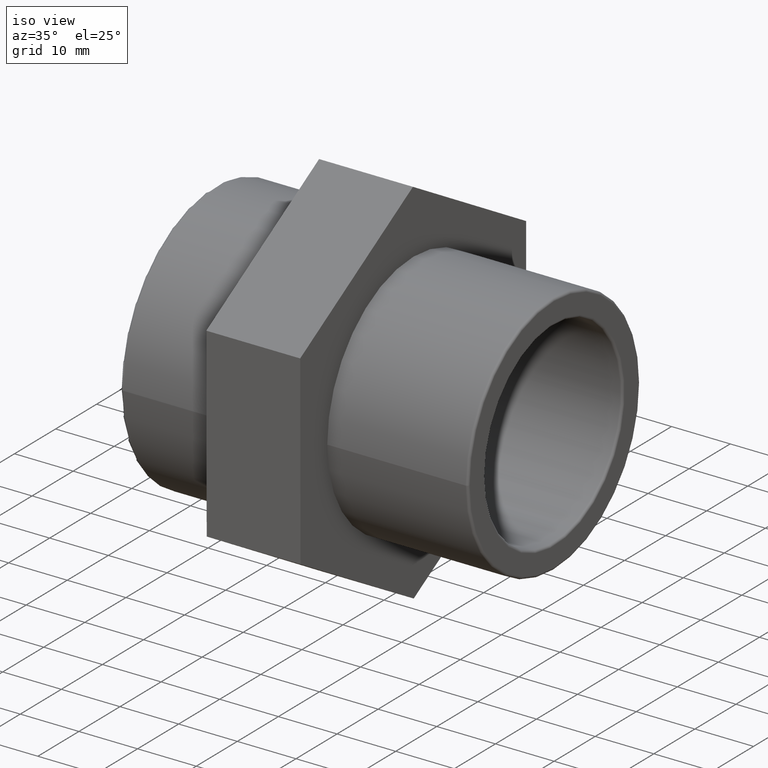
[diagram: clean part render]
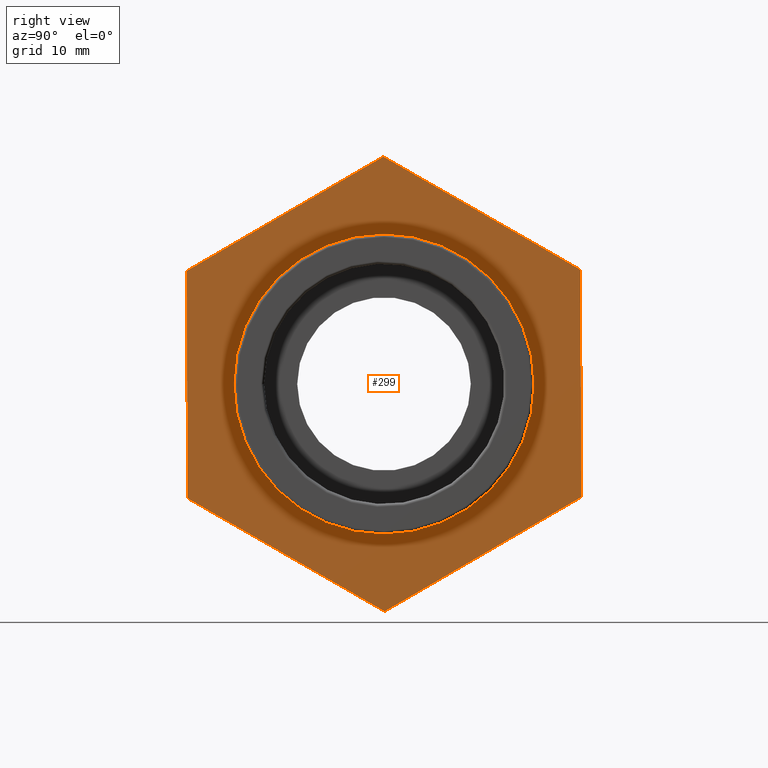
[diagram: tour spotlight — one face highlighted and labeled with its STEP entity id]
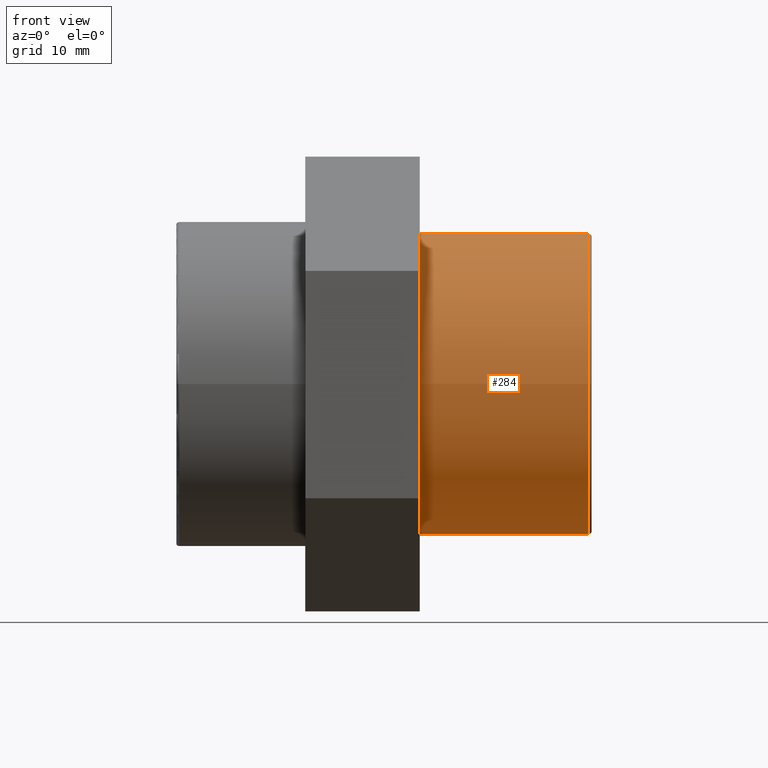
[diagram: tour spotlight — one face highlighted and labeled with its STEP entity id]
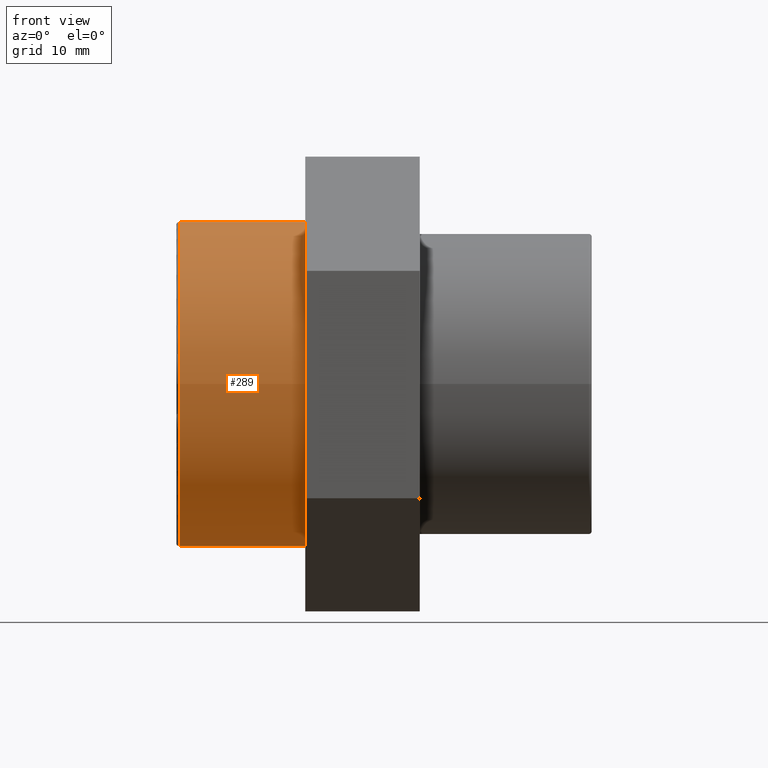
[diagram: tour spotlight — one face highlighted and labeled with its STEP entity id]
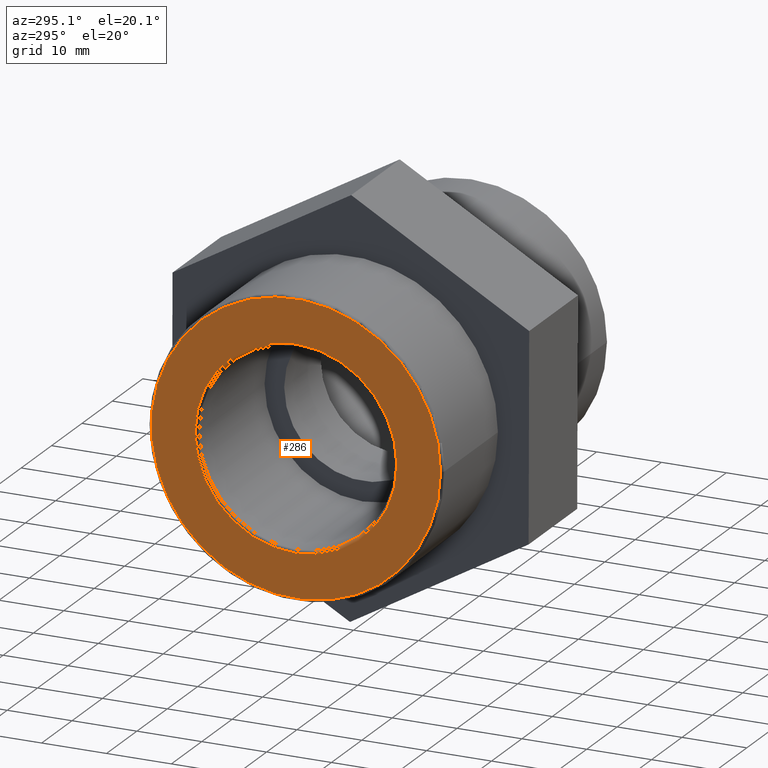
[diagram: tour spotlight — one face highlighted and labeled with its STEP entity id]
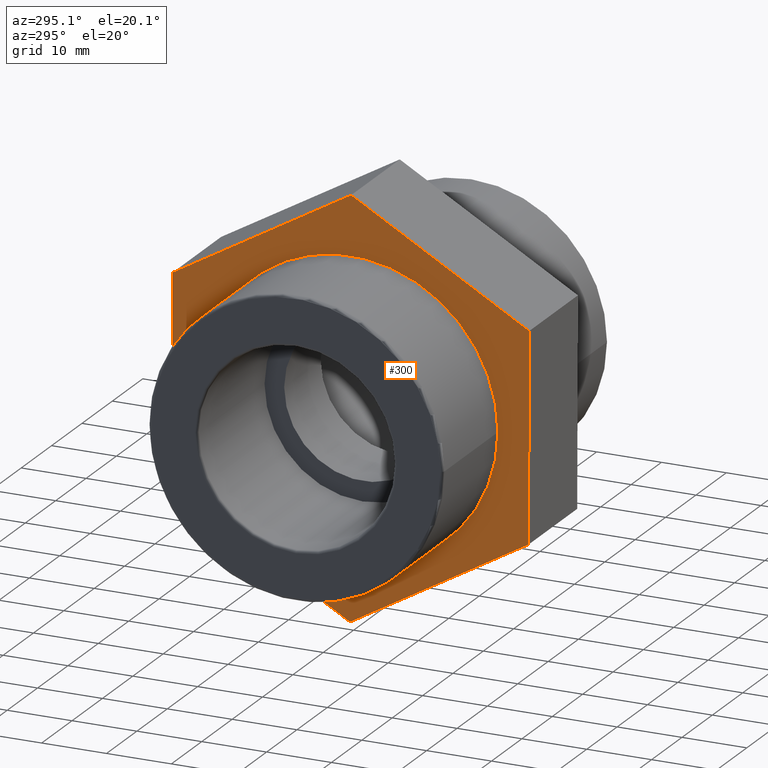
[diagram: tour spotlight — one face highlighted and labeled with its STEP entity id]
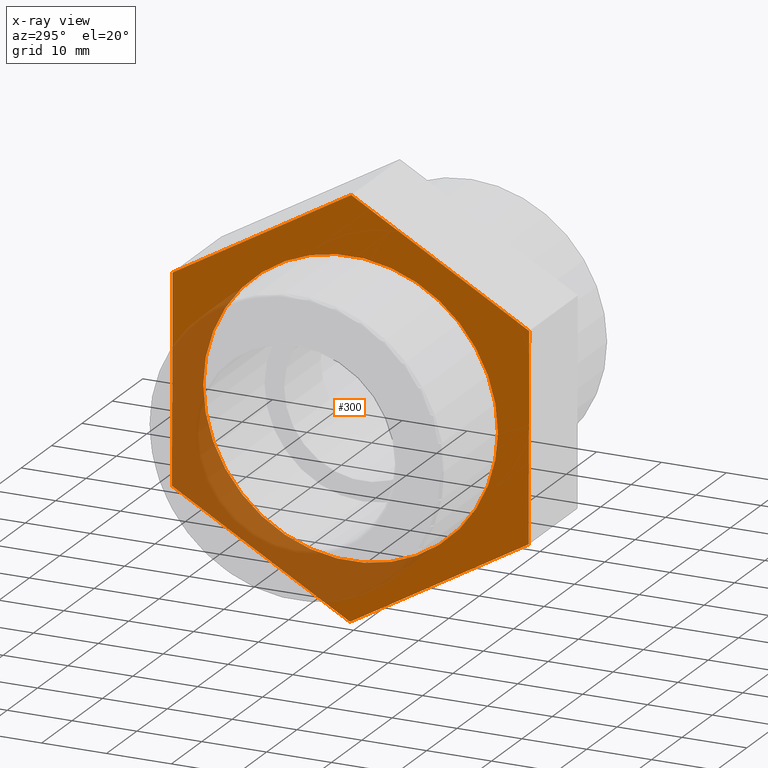
[diagram: x-ray of the same camera — body ghosted, this tour face saturated]
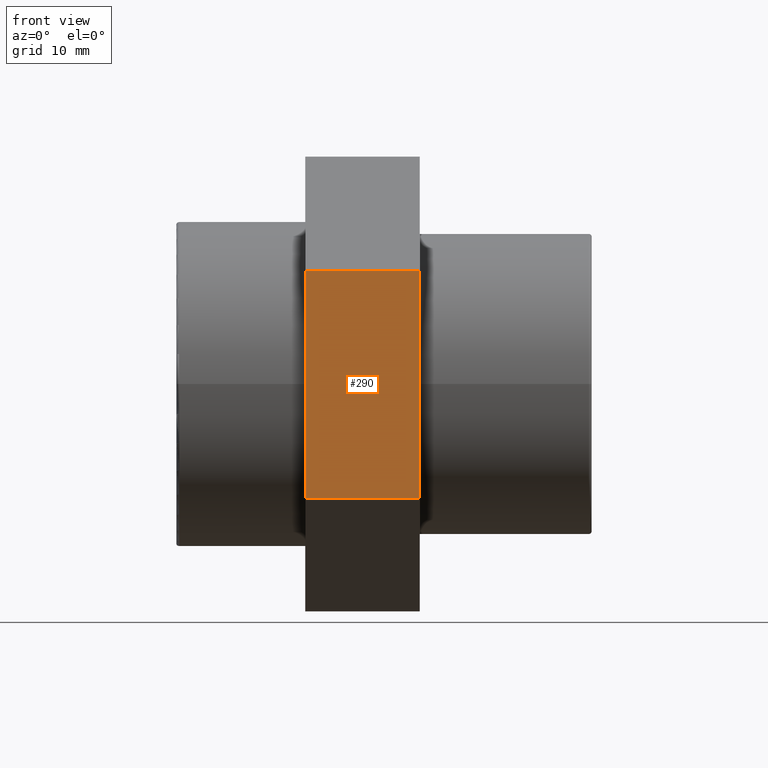
[diagram: tour spotlight — one face highlighted and labeled with its STEP entity id]
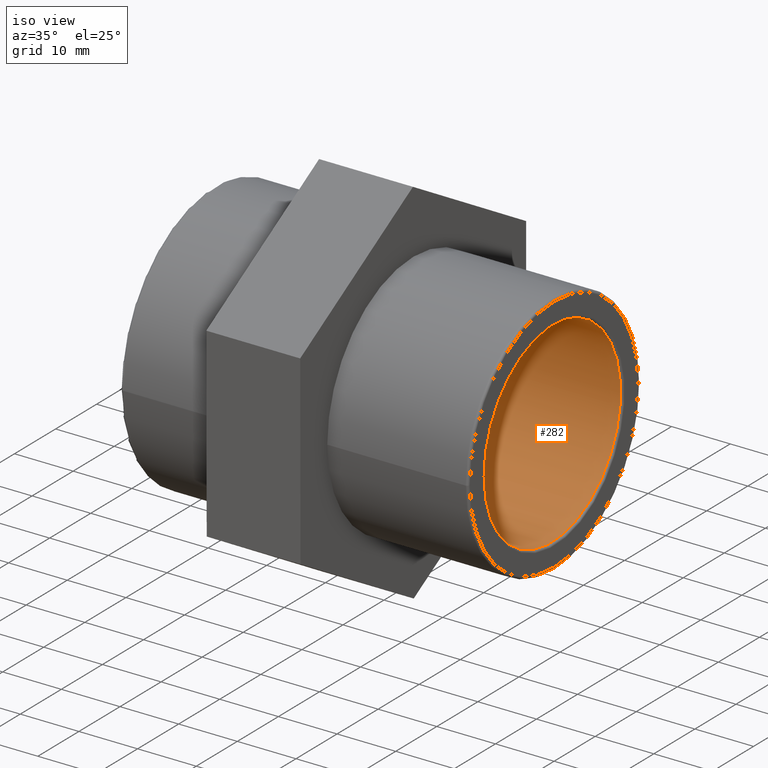
[diagram: tour spotlight — one face highlighted and labeled with its STEP entity id]
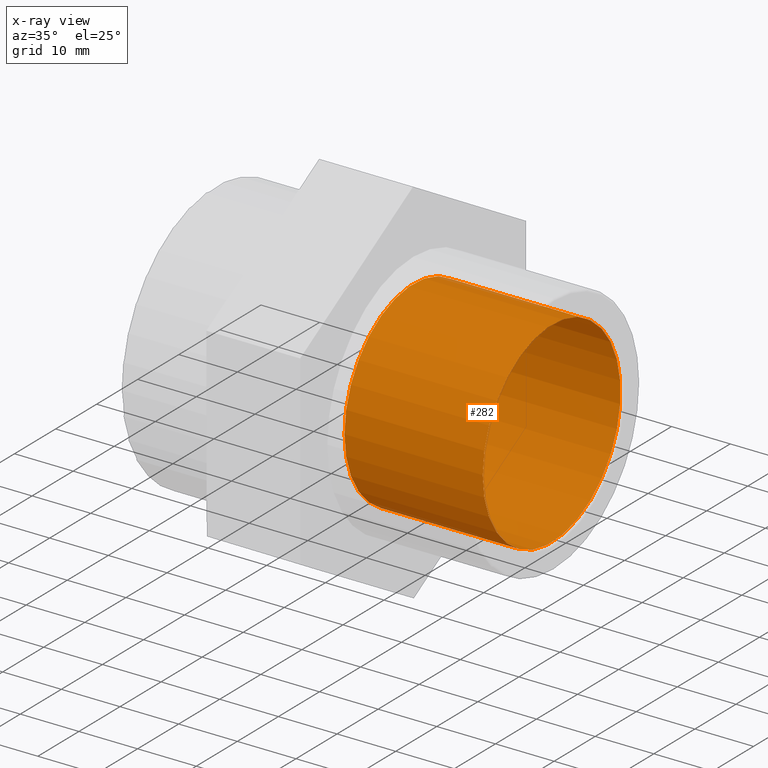
[diagram: x-ray of the same camera — body ghosted, this tour face saturated]
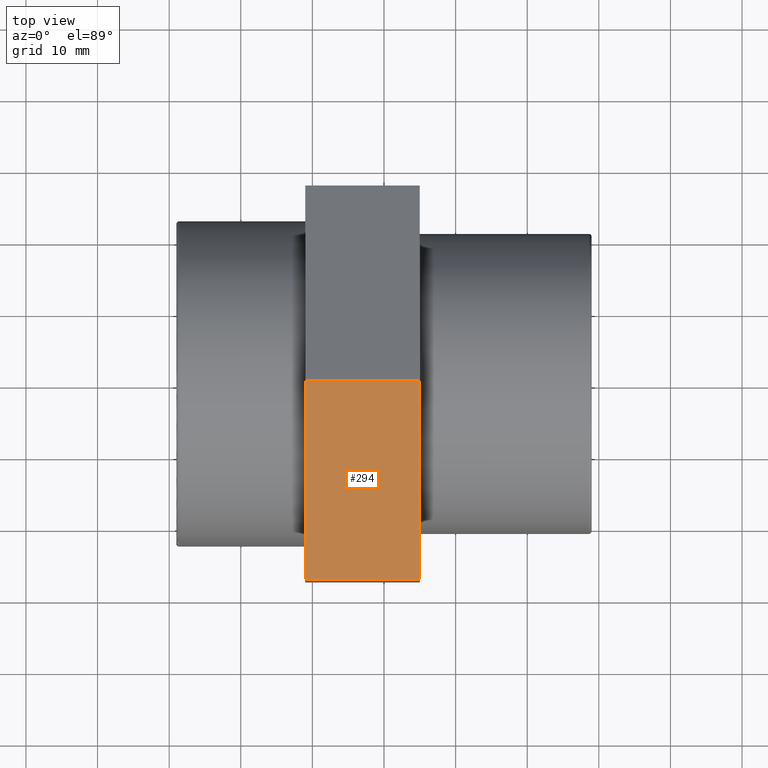
[diagram: tour spotlight — one face highlighted and labeled with its STEP entity id]
A machine part: a face-by-face anatomy tour. The part has 21 B-rep faces; the first image is the clean iso view, then the 8 largest visible faces are spotlighted one at a time (largest first), each with its STEP entity span.

Face 1 — right view, entity #299. In plain terms, the highlighted planar face has unit normal (1, 0, 0).
Definition (entity closure, byte-faithful):
#17=LINE('',#470,#35);
#21=LINE('',#477,#39);
#24=LINE('',#483,#42);
#27=LINE('',#491,#45);
#30=LINE('',#495,#48);
#32=LINE('',#498,#50);
#35=VECTOR('',#388,31.7542648054294);
#39=VECTOR('',#394,31.7542648054294);
#42=VECTOR('',#399,31.7542648054294);
#45=VECTOR('',#404,31.7542648054294);
#48=VECTOR('',#409,31.7542648054294);
#50=VECTOR('',#413,31.7542648054294);
#66=PLANE('',#336);
#81=FACE_BOUND('',#137,.T.);
#102=FACE_OUTER_BOUND('',#136,.T.);
#136=EDGE_LOOP('',(#262,#263,#264,#265,#266,#267));
#137=EDGE_LOOP('',(#268));
#145=CIRCLE('',#313,20.955);
#159=VERTEX_POINT('',#444);
#168=VERTEX_POINT('',#467);
#169=VERTEX_POINT('',#469);
#171=VERTEX_POINT('',#475);
#173=VERTEX_POINT('',#481);
#176=VERTEX_POINT('',#488);
#177=VERTEX_POINT('',#490);
#185=EDGE_CURVE('',#159,#159,#145,.T.);
#194=EDGE_CURVE('',#168,#169,#17,.T.);
#198=EDGE_CURVE('',#171,#168,#21,.T.);
#201=EDGE_CURVE('',#173,#171,#24,.T.);
#204=EDGE_CURVE('',#176,#177,#27,.T.);
#207=EDGE_CURVE('',#169,#176,#30,.T.);
#209=EDGE_CURVE('',#177,#173,#32,.T.);
#262=ORIENTED_EDGE('',*,*,#207,.F.);
#263=ORIENTED_EDGE('',*,*,#194,.F.);
#264=ORIENTED_EDGE('',*,*,#198,.F.);
#265=ORIENTED_EDGE('',*,*,#201,.F.);
#266=ORIENTED_EDGE('',*,*,#209,.F.);
#267=ORIENTED_EDGE('',*,*,#204,.F.);
#268=ORIENTED_EDGE('',*,*,#185,.T.);
#299=ADVANCED_FACE('',(#102,#81),#66,.T.);
#313=AXIS2_PLACEMENT_3D('',#445,#360,#361);
#336=AXIS2_PLACEMENT_3D('',#506,#424,#425);
#360=DIRECTION('center_axis',(-1.,-1.83697019872103E-16,0.));
#361=DIRECTION('ref_axis',(0.,0.,1.));
#388=DIRECTION('',(5.44336326563915E-19,-0.00296322894591814,0.999995609627469));
#394=DIRECTION('',(1.59357755523959E-16,-0.867503216083254,0.49743157326934));
#399=DIRECTION('',(1.58813419197395E-16,-0.864539987137336,-0.50256403635813));
#404=DIRECTION('',(-1.59357755523959E-16,0.867503216083254,-0.49743157326934));
#409=DIRECTION('',(-1.58813419197395E-16,0.864539987137336,0.50256403635813));
#413=DIRECTION('',(-5.44336326564018E-19,0.0029632289459187,-0.999995609627469));
#424=DIRECTION('center_axis',(1.,1.83697019872103E-16,0.));
#425=DIRECTION('ref_axis',(0.,0.,-1.));
#444=CARTESIAN_POINT('',(5.00000000000001,-20.955,0.));
#445=CARTESIAN_POINT('Origin',(5.,6.2456986756515E-15,0.));
#467=CARTESIAN_POINT('',(5.00000000000001,-27.4528316864415,-15.9585514922015));
#469=CARTESIAN_POINT('',(5.00000000000001,-27.5469268430693,15.795573900176));
#470=CARTESIAN_POINT('',(5.00000000000001,-27.4528316864415,-15.9585514922015));
#475=CARTESIAN_POINT('',(5.,0.0940951566278074,-31.7541253923775));
#477=CARTESIAN_POINT('',(5.,0.0940951566278074,-31.7541253923775));
#481=CARTESIAN_POINT('',(5.,27.5469268430693,-15.795573900176));
#483=CARTESIAN_POINT('',(5.,27.5469268430693,-15.795573900176));
#488=CARTESIAN_POINT('',(5.,-0.0940951566278125,31.7541253923775));
#490=CARTESIAN_POINT('',(5.,27.4528316864415,15.9585514922015));
#491=CARTESIAN_POINT('',(5.,-0.0940951566278125,31.7541253923775));
#495=CARTESIAN_POINT('',(5.00000000000001,-27.5469268430693,15.795573900176));
#498=CARTESIAN_POINT('',(5.,27.4528316864415,15.9585514922015));
#506=CARTESIAN_POINT('Origin',(5.00000000000001,-27.5,0.));

Face 2 — front view, entity #284. In plain terms, the highlighted cylindrical surface (bore or boss wall) has radius 20.955 mm, axis along (-1, -0, 0).
Definition (entity closure, byte-faithful):
#52=CYLINDRICAL_SURFACE('',#312,20.955);
#72=FACE_BOUND('',#113,.T.);
#87=FACE_OUTER_BOUND('',#112,.T.);
#112=EDGE_LOOP('',(#220));
#113=EDGE_LOOP('',(#221));
#144=CIRCLE('',#311,20.955);
#145=CIRCLE('',#313,20.955);
#158=VERTEX_POINT('',#441);
#159=VERTEX_POINT('',#444);
#184=EDGE_CURVE('',#158,#158,#144,.T.);
#185=EDGE_CURVE('',#159,#159,#145,.T.);
#220=ORIENTED_EDGE('',*,*,#185,.F.);
#221=ORIENTED_EDGE('',*,*,#184,.F.);
#284=ADVANCED_FACE('',(#87,#72),#52,.T.);
#311=AXIS2_PLACEMENT_3D('',#442,#356,#357);
#312=AXIS2_PLACEMENT_3D('',#443,#358,#359);
#313=AXIS2_PLACEMENT_3D('',#445,#360,#361);
#356=DIRECTION('center_axis',(1.,1.83697019872103E-16,0.));
#357=DIRECTION('ref_axis',(-1.82123199577618E-16,1.,6.12323399573677E-17));
#358=DIRECTION('center_axis',(-1.,-1.83697019872103E-16,0.));
#359=DIRECTION('ref_axis',(2.19911463726881E-16,-1.,0.));
#360=DIRECTION('center_axis',(-1.,-1.83697019872103E-16,0.));
#361=DIRECTION('ref_axis',(0.,0.,1.));
#441=CARTESIAN_POINT('',(28.5809,-20.955,-3.84937105141992E-15));
#442=CARTESIAN_POINT('Origin',(28.5809,1.05774397315536E-14,0.));
#443=CARTESIAN_POINT('Origin',(17.,8.45006291411674E-15,0.));
#444=CARTESIAN_POINT('',(5.00000000000001,-20.955,0.));
#445=CARTESIAN_POINT('Origin',(5.,6.2456986756515E-15,0.));

Face 3 — front view, entity #289. In plain terms, the highlighted cylindrical surface (bore or boss wall) has radius 22.7183 mm, axis along (-1, -0, 0).
Definition (entity closure, byte-faithful):
#54=CYLINDRICAL_SURFACE('',#323,22.71825);
#77=FACE_BOUND('',#123,.T.);
#92=FACE_OUTER_BOUND('',#122,.T.);
#122=EDGE_LOOP('',(#230));
#123=EDGE_LOOP('',(#231));
#150=CIRCLE('',#322,22.71825);
#151=CIRCLE('',#324,22.71825);
#164=VERTEX_POINT('',#458);
#165=VERTEX_POINT('',#461);
#190=EDGE_CURVE('',#164,#164,#150,.T.);
#191=EDGE_CURVE('',#165,#165,#151,.T.);
#230=ORIENTED_EDGE('',*,*,#191,.T.);
#231=ORIENTED_EDGE('',*,*,#190,.F.);
#289=ADVANCED_FACE('',(#92,#77),#54,.T.);
#322=AXIS2_PLACEMENT_3D('',#459,#378,#379);
#323=AXIS2_PLACEMENT_3D('',#460,#380,#381);
#324=AXIS2_PLACEMENT_3D('',#462,#382,#383);
#378=DIRECTION('center_axis',(-1.,-1.83697019872103E-16,0.));
#379=DIRECTION('ref_axis',(-1.83259553105734E-16,1.,6.12323399573677E-17));
#380=DIRECTION('center_axis',(-1.,-1.83697019872103E-16,0.));
#381=DIRECTION('ref_axis',(2.19911463726881E-16,-1.,0.));
#382=DIRECTION('center_axis',(-1.,-1.83697019872103E-16,0.));
#383=DIRECTION('ref_axis',(0.,0.,1.));
#458=CARTESIAN_POINT('',(-28.5809,-22.71825,1.39109160723647E-15));
#459=CARTESIAN_POINT('Origin',(-28.5809,7.69874210283978E-17,0.));
#460=CARTESIAN_POINT('Origin',(-20.,1.65327317884893E-15,0.));
#461=CARTESIAN_POINT('',(-11.,-22.71825,0.));
#462=CARTESIAN_POINT('Origin',(-11.,3.30654635769786E-15,0.));

Face 4 — auxiliary view, entity #286. In plain terms, the highlighted planar face has unit normal (-1, -0, 0).
Definition (entity closure, byte-faithful):
#57=PLANE('',#317);
#74=FACE_BOUND('',#117,.T.);
#89=FACE_OUTER_BOUND('',#116,.T.);
#116=EDGE_LOOP('',(#224));
#117=EDGE_LOOP('',(#225));
#146=CIRCLE('',#315,15.5646);
#148=CIRCLE('',#318,22.29915);
#160=VERTEX_POINT('',#447);
#162=VERTEX_POINT('',#452);
#186=EDGE_CURVE('',#160,#160,#146,.T.);
#188=EDGE_CURVE('',#162,#162,#148,.T.);
#224=ORIENTED_EDGE('',*,*,#188,.F.);
#225=ORIENTED_EDGE('',*,*,#186,.F.);
#286=ADVANCED_FACE('',(#89,#74),#57,.T.);
#315=AXIS2_PLACEMENT_3D('',#448,#364,#365);
#317=AXIS2_PLACEMENT_3D('',#451,#368,#369);
#318=AXIS2_PLACEMENT_3D('',#453,#370,#371);
#364=DIRECTION('center_axis',(-1.,-1.83697019872103E-16,0.));
#365=DIRECTION('ref_axis',(-1.83697019872103E-16,1.,6.12323399573677E-17));
#368=DIRECTION('center_axis',(-1.,-1.83697019872103E-16,0.));
#369=DIRECTION('ref_axis',(0.,0.,1.));
#370=DIRECTION('center_axis',(1.,1.83697019872103E-16,0.));
#371=DIRECTION('ref_axis',(-1.83697019872103E-16,1.,6.12323399573677E-17));
#447=CARTESIAN_POINT('',(-29.,-15.5646,9.53056878500445E-16));
#448=CARTESIAN_POINT('Origin',(-29.,1.54074395550979E-32,0.));
#451=CARTESIAN_POINT('Origin',(-29.,-15.1455,0.));
#452=CARTESIAN_POINT('',(-29.,-22.29915,-4.09628740068101E-15));
#453=CARTESIAN_POINT('Origin',(-29.,-4.77630626208034E-31,0.));

Face 5 — auxiliary view, entity #300. An x-ray twin of the same camera follows (body ghosted, this face saturated) — the face is partly hidden behind the body. In plain terms, the highlighted planar face has unit normal (-1, -0, 0).
Definition (entity closure, byte-faithful):
#15=LINE('',#466,#33);
#19=LINE('',#474,#37);
#22=LINE('',#480,#40);
#25=LINE('',#487,#43);
#29=LINE('',#494,#47);
#31=LINE('',#497,#49);
#33=VECTOR('',#386,31.7542648054294);
#37=VECTOR('',#392,31.7542648054294);
#40=VECTOR('',#397,31.7542648054294);
#43=VECTOR('',#402,31.7542648054294);
#47=VECTOR('',#408,31.7542648054294);
#49=VECTOR('',#412,31.7542648054294);
#67=PLANE('',#337);
#82=FACE_BOUND('',#139,.T.);
#103=FACE_OUTER_BOUND('',#138,.T.);
#138=EDGE_LOOP('',(#269,#270,#271,#272,#273,#274));
#139=EDGE_LOOP('',(#275));
#151=CIRCLE('',#324,22.71825);
#165=VERTEX_POINT('',#461);
#166=VERTEX_POINT('',#464);
#167=VERTEX_POINT('',#465);
#170=VERTEX_POINT('',#473);
#172=VERTEX_POINT('',#479);
#174=VERTEX_POINT('',#485);
#175=VERTEX_POINT('',#486);
#191=EDGE_CURVE('',#165,#165,#151,.T.);
#192=EDGE_CURVE('',#166,#167,#15,.T.);
#196=EDGE_CURVE('',#167,#170,#19,.T.);
#199=EDGE_CURVE('',#170,#172,#22,.T.);
#202=EDGE_CURVE('',#174,#175,#25,.T.);
#206=EDGE_CURVE('',#175,#166,#29,.T.);
#208=EDGE_CURVE('',#172,#174,#31,.T.);
#269=ORIENTED_EDGE('',*,*,#206,.F.);
#270=ORIENTED_EDGE('',*,*,#202,.F.);
#271=ORIENTED_EDGE('',*,*,#208,.F.);
#272=ORIENTED_EDGE('',*,*,#199,.F.);
#273=ORIENTED_EDGE('',*,*,#196,.F.);
#274=ORIENTED_EDGE('',*,*,#192,.F.);
#275=ORIENTED_EDGE('',*,*,#191,.F.);
#300=ADVANCED_FACE('',(#103,#82),#67,.T.);
#324=AXIS2_PLACEMENT_3D('',#462,#382,#383);
#337=AXIS2_PLACEMENT_3D('',#507,#426,#427);
#382=DIRECTION('center_axis',(-1.,-1.83697019872103E-16,0.));
#383=DIRECTION('ref_axis',(0.,0.,1.));
#386=DIRECTION('',(-5.44336326563915E-19,0.00296322894591814,-0.999995609627469));
#392=DIRECTION('',(-1.59357755523959E-16,0.867503216083254,-0.49743157326934));
#397=DIRECTION('',(-1.58813419197395E-16,0.864539987137336,0.50256403635813));
#402=DIRECTION('',(1.59357755523959E-16,-0.867503216083254,0.49743157326934));
#408=DIRECTION('',(1.58813419197395E-16,-0.864539987137336,-0.50256403635813));
#412=DIRECTION('',(5.44336326564018E-19,-0.0029632289459187,0.999995609627469));
#426=DIRECTION('center_axis',(-1.,-1.83697019872103E-16,0.));
#427=DIRECTION('ref_axis',(0.,0.,1.));
#461=CARTESIAN_POINT('',(-11.,-22.71825,0.));
#462=CARTESIAN_POINT('Origin',(-11.,3.30654635769786E-15,0.));
#464=CARTESIAN_POINT('',(-11.,-27.5469268430693,15.795573900176));
#465=CARTESIAN_POINT('',(-11.,-27.4528316864415,-15.9585514922015));
#466=CARTESIAN_POINT('',(-11.,-27.4763554755985,-8.02002014410714));
#473=CARTESIAN_POINT('',(-11.,0.0940951566278044,-31.7541253923775));
#474=CARTESIAN_POINT('',(-11.,-6.79263655413953,-27.8052319173335));
#479=CARTESIAN_POINT('',(-11.,27.5469268430693,-15.795573900176));
#480=CARTESIAN_POINT('',(-11.,20.6837189214589,-19.7852117732264));
#485=CARTESIAN_POINT('',(-11.,27.4528316864415,15.9585514922015));
#486=CARTESIAN_POINT('',(-11.,-0.0940951566278155,31.7541253923775));
#487=CARTESIAN_POINT('',(-11.,6.79263655413952,27.8052319173335));
#494=CARTESIAN_POINT('',(-11.,-20.6837189214589,19.7852117732264));
#497=CARTESIAN_POINT('',(-11.,27.4998792647554,0.0814887960127625));
#507=CARTESIAN_POINT('Origin',(-11.,-22.71825,0.));

Face 6 — front view, entity #290. In plain terms, the highlighted planar face has unit normal (0, -1, -0.003).
Definition (entity closure, byte-faithful):
#15=LINE('',#466,#33);
#16=LINE('',#468,#34);
#17=LINE('',#470,#35);
#18=LINE('',#471,#36);
#33=VECTOR('',#386,31.7542648054294);
#34=VECTOR('',#387,16.);
#35=VECTOR('',#388,31.7542648054294);
#36=VECTOR('',#389,16.);
#58=PLANE('',#325);
#93=FACE_OUTER_BOUND('',#124,.T.);
#124=EDGE_LOOP('',(#232,#233,#234,#235));
#166=VERTEX_POINT('',#464);
#167=VERTEX_POINT('',#465);
#168=VERTEX_POINT('',#467);
#169=VERTEX_POINT('',#469);
#192=EDGE_CURVE('',#166,#167,#15,.T.);
#193=EDGE_CURVE('',#168,#167,#16,.T.);
#194=EDGE_CURVE('',#168,#169,#17,.T.);
#195=EDGE_CURVE('',#169,#166,#18,.T.);
#232=ORIENTED_EDGE('',*,*,#192,.T.);
#233=ORIENTED_EDGE('',*,*,#193,.F.);
#234=ORIENTED_EDGE('',*,*,#194,.T.);
#235=ORIENTED_EDGE('',*,*,#195,.T.);
#290=ADVANCED_FACE('',(#93),#58,.T.);
#325=AXIS2_PLACEMENT_3D('',#463,#384,#385);
#384=DIRECTION('center_axis',(1.85036358388747E-16,-0.999995609627469,-0.00296322894591814));
#385=DIRECTION('ref_axis',(0.,-0.00296322894591796,0.999995609627469));
#386=DIRECTION('',(-5.44336326563915E-19,0.00296322894591814,-0.999995609627469));
#387=DIRECTION('',(-1.,-1.85037170770859E-16,0.));
#388=DIRECTION('',(5.44336326563915E-19,-0.00296322894591814,0.999995609627469));
#389=DIRECTION('',(-1.,-1.85037170770859E-16,0.));
#463=CARTESIAN_POINT('Origin',(5.00000000000001,-27.4528316864415,-15.9585514922015));
#464=CARTESIAN_POINT('',(-11.,-27.5469268430693,15.795573900176));
#465=CARTESIAN_POINT('',(-11.,-27.4528316864415,-15.9585514922015));
#466=CARTESIAN_POINT('',(-11.,-27.4763554755985,-8.02002014410714));
#467=CARTESIAN_POINT('',(5.00000000000001,-27.4528316864415,-15.9585514922015));
#468=CARTESIAN_POINT('',(5.00000000000001,-27.4528316864415,-15.9585514922015));
#469=CARTESIAN_POINT('',(5.00000000000001,-27.5469268430693,15.795573900176));
#470=CARTESIAN_POINT('',(5.00000000000001,-27.4528316864415,-15.9585514922015));
#471=CARTESIAN_POINT('',(5.00000000000001,-27.5469268430693,15.795573900176));

Face 7 — iso view, entity #282. An x-ray twin of the same camera follows (body ghosted, this face saturated) — the face is partly hidden behind the body. In plain terms, the highlighted cylindrical surface (bore or boss wall) has radius 16.764 mm, axis along (-1, -0, 0).
Definition (entity closure, byte-faithful):
#51=CYLINDRICAL_SURFACE('',#308,16.764);
#70=FACE_BOUND('',#109,.T.);
#85=FACE_OUTER_BOUND('',#108,.T.);
#108=EDGE_LOOP('',(#216));
#109=EDGE_LOOP('',(#217));
#140=CIRCLE('',#304,16.764);
#143=CIRCLE('',#309,16.764);
#154=VERTEX_POINT('',#430);
#157=VERTEX_POINT('',#438);
#180=EDGE_CURVE('',#154,#154,#140,.T.);
#183=EDGE_CURVE('',#157,#157,#143,.T.);
#216=ORIENTED_EDGE('',*,*,#183,.T.);
#217=ORIENTED_EDGE('',*,*,#180,.F.);
#282=ADVANCED_FACE('',(#85,#70),#51,.F.);
#304=AXIS2_PLACEMENT_3D('',#431,#342,#343);
#308=AXIS2_PLACEMENT_3D('',#437,#350,#351);
#309=AXIS2_PLACEMENT_3D('',#439,#352,#353);
#342=DIRECTION('center_axis',(-1.,-1.83697019872103E-16,0.));
#343=DIRECTION('ref_axis',(-1.82123199577617E-16,1.,6.12323399573677E-17));
#350=DIRECTION('center_axis',(-1.,-1.83697019872103E-16,0.));
#351=DIRECTION('ref_axis',(2.19911463726881E-16,-1.,0.));
#352=DIRECTION('center_axis',(-1.,-1.83697019872103E-16,0.));
#353=DIRECTION('ref_axis',(0.,0.,1.));
#430=CARTESIAN_POINT('',(28.5809,-16.764,1.02649894704531E-15));
#431=CARTESIAN_POINT('Origin',(28.5809,1.05774397315536E-14,0.));
#437=CARTESIAN_POINT('Origin',(17.,8.45006291411674E-15,0.));
#438=CARTESIAN_POINT('',(5.00000000000001,-16.764,0.));
#439=CARTESIAN_POINT('Origin',(5.,6.2456986756515E-15,0.));

Face 8 — top view, entity #294. In plain terms, the highlighted planar face has unit normal (0, -0.5026, 0.8645).
Definition (entity closure, byte-faithful):
#18=LINE('',#471,#36);
#26=LINE('',#489,#44);
#29=LINE('',#494,#47);
#30=LINE('',#495,#48);
#36=VECTOR('',#389,16.);
#44=VECTOR('',#403,16.);
#47=VECTOR('',#408,31.7542648054294);
#48=VECTOR('',#409,31.7542648054294);
#62=PLANE('',#329);
#97=FACE_OUTER_BOUND('',#128,.T.);
#128=EDGE_LOOP('',(#248,#249,#250,#251));
#166=VERTEX_POINT('',#464);
#169=VERTEX_POINT('',#469);
#175=VERTEX_POINT('',#486);
#176=VERTEX_POINT('',#488);
#195=EDGE_CURVE('',#169,#166,#18,.T.);
#203=EDGE_CURVE('',#176,#175,#26,.T.);
#206=EDGE_CURVE('',#175,#166,#29,.T.);
#207=EDGE_CURVE('',#169,#176,#30,.T.);
#248=ORIENTED_EDGE('',*,*,#206,.T.);
#249=ORIENTED_EDGE('',*,*,#195,.F.);
#250=ORIENTED_EDGE('',*,*,#207,.T.);
#251=ORIENTED_EDGE('',*,*,#203,.T.);
#294=ADVANCED_FACE('',(#97),#62,.T.);
#329=AXIS2_PLACEMENT_3D('',#493,#406,#407);
#389=DIRECTION('',(-1.,-1.85037170770859E-16,0.));
#403=DIRECTION('',(-1.,-1.85037170770859E-16,0.));
#406=DIRECTION('center_axis',(9.29930274188912E-17,-0.50256403635813,0.864539987137336));
#407=DIRECTION('ref_axis',(-1.77635683940025E-16,0.864539987137336,0.50256403635813));
#408=DIRECTION('',(1.58813419197395E-16,-0.864539987137336,-0.50256403635813));
#409=DIRECTION('',(-1.58813419197395E-16,0.864539987137336,0.50256403635813));
#464=CARTESIAN_POINT('',(-11.,-27.5469268430693,15.795573900176));
#469=CARTESIAN_POINT('',(5.00000000000001,-27.5469268430693,15.795573900176));
#471=CARTESIAN_POINT('',(5.00000000000001,-27.5469268430693,15.795573900176));
#486=CARTESIAN_POINT('',(-11.,-0.0940951566278155,31.7541253923775));
#488=CARTESIAN_POINT('',(5.,-0.0940951566278125,31.7541253923775));
#489=CARTESIAN_POINT('',(5.,-0.0940951566278125,31.7541253923775));
#493=CARTESIAN_POINT('Origin',(5.00000000000001,-27.5469268430693,15.795573900176));
#494=CARTESIAN_POINT('',(-11.,-20.6837189214589,19.7852117732264));
#495=CARTESIAN_POINT('',(5.00000000000001,-27.5469268430693,15.795573900176));